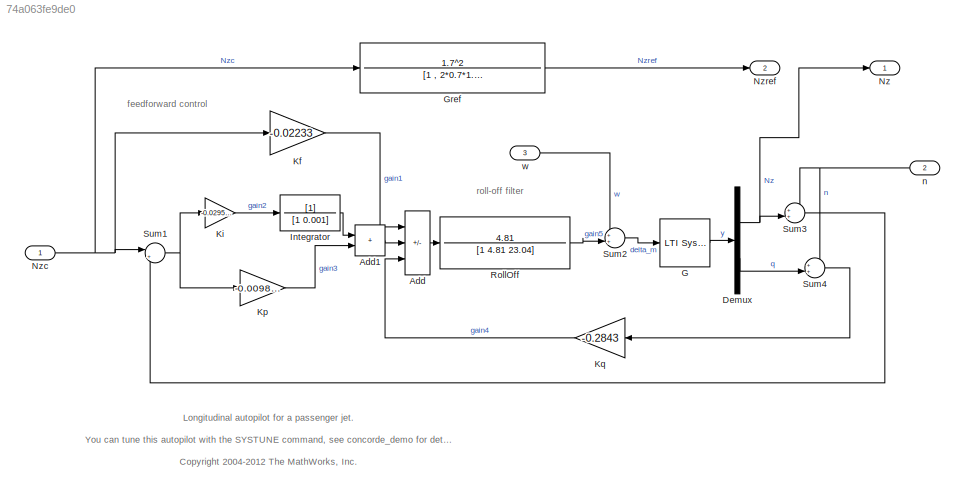
MODEL slx_74a063fe9de0
KIND model
CONFIG AbsTol = auto
CONFIG EnableMultiTasking = on
CONFIG FixedStep = auto
CONFIG MaxStep = auto
CONFIG MinStep = auto
CONFIG RelTol = 1e-3
CONFIG SampleTimeConstraint = Unconstrained
CONFIG Solver = ode45
CONFIG SolverName = ode45
CONFIG StartTime = 0.0
CONFIG StopTime = tspan(end)
WORKSPACE source: mxarray member
WORKSPACE G: object (value not decoded)
WORKSPACE Kf = 0
WORKSPACE Ki = 0
WORKSPACE Kp = 0
WORKSPACE Kq = 0
WORKSPACE wn = 3
WORKSPACE zeta = 0.8
BLOCK [Sum] Add
  IconShape = rectangular
  Inputs = ++-
  Ports = [3, 1]
BLOCK [Sum] Add1
  IconShape = rectangular
  Ports = [2, 1]
BLOCK [Demux] Demux
  DisplayOption = none
  Outputs = 2
  Ports = [1, 2]
BLOCK [Reference] G  REF=cstblocks/LTI System
  Ports = [1, 1]
  SourceBlock = cstblocks/LTI System
  SourceProductBaseCode = CT
  SourceType = LTI Block
BLOCK [TransferFcn] Gref
  Denominator = [1 , 2*0.7*1.7 , 1.7^2]
  Numerator = 1.7^2
BLOCK [TransferFcn] Integrator
  Denominator = [1 0.001]
BLOCK [Gain] Kf
  Gain = -0.02233
BLOCK [Gain] Ki
  Gain = -0.029526
BLOCK [Gain] Kp
  Gain = -0.009821
BLOCK [Gain] Kq
  Gain = -0.2843
BLOCK [Outport] Nz
  VectorParamsAs1DForOutWhenUnconnected = off
BLOCK [Inport] Nzc
BLOCK [Outport] Nzref
  Port = 2
BLOCK [TransferFcn] RollOff
  Denominator = [1 4.81 23.04]
  Numerator = 4.81
BLOCK [Sum] Sum1
  InputSameDT = on
  Inputs = |+-
  OutDataTypeStr = Inherit: Same as first input
  Ports = [2, 1]
  SaturateOnIntegerOverflow = on
BLOCK [Sum] Sum2
  Inputs = ++|
  Ports = [2, 1]
BLOCK [Sum] Sum3
  Inputs = ++|
  Ports = [2, 1]
BLOCK [Sum] Sum4
  Inputs = ++|
  Ports = [2, 1]
BLOCK [Inport] n
  NameLocation = top
  Port = 2
BLOCK [Inport] w
  Port = 3
ANNOTATION (root): Longitudinal autopilot for a passenger jet. You can tune this autopilot with the SYSTUNE command, see concorde_demo for details <copyright redacted>
ANNOTATION (root): feedforward control
ANNOTATION (root): roll-off filter
LINE Add1:1 -> Add:2
LINE Add:1 -> RollOff:1
NET Demux:1 -> Nz:1, Sum3:2
LINE Demux:2 -> Sum4:2
LINE G:1 -> Demux:1
LINE Gref:1 -> Nzref:1
LINE Integrator:1 -> Add1:1
LINE Kf:1 -> Add:1
LINE Ki:1 -> Integrator:1
LINE Kp:1 -> Add1:2
LINE Kq:1 -> Add:3
NET Nzc:1 -> Gref:1, Kf:1, Sum1:1
LINE RollOff:1 -> Sum2:2
NET Sum1:1 -> Ki:1, Kp:1
LINE Sum2:1 -> G:1
LINE Sum3:1 -> Sum1:2
LINE Sum4:1 -> Kq:1
NET n:1 -> Sum3:1, Sum4:1
LINE w:1 -> Sum2:1
note: NET lines group one-source signal fan-out (src -> all destinations, sorted); 1:1 wires keep LINE
